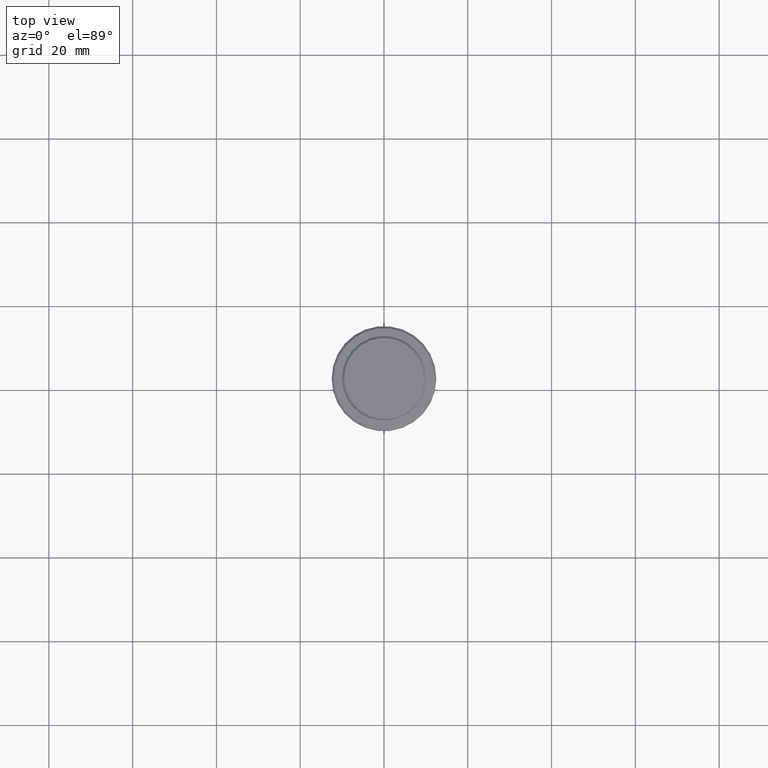
[diagram: clean part render]
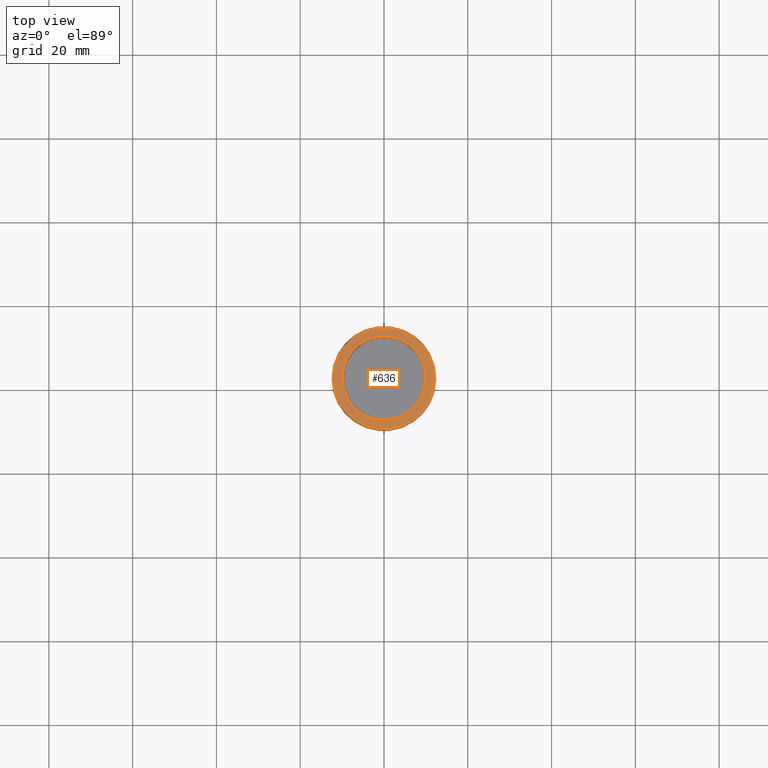
[diagram: same view with one face highlighted and labeled with its STEP entity id]
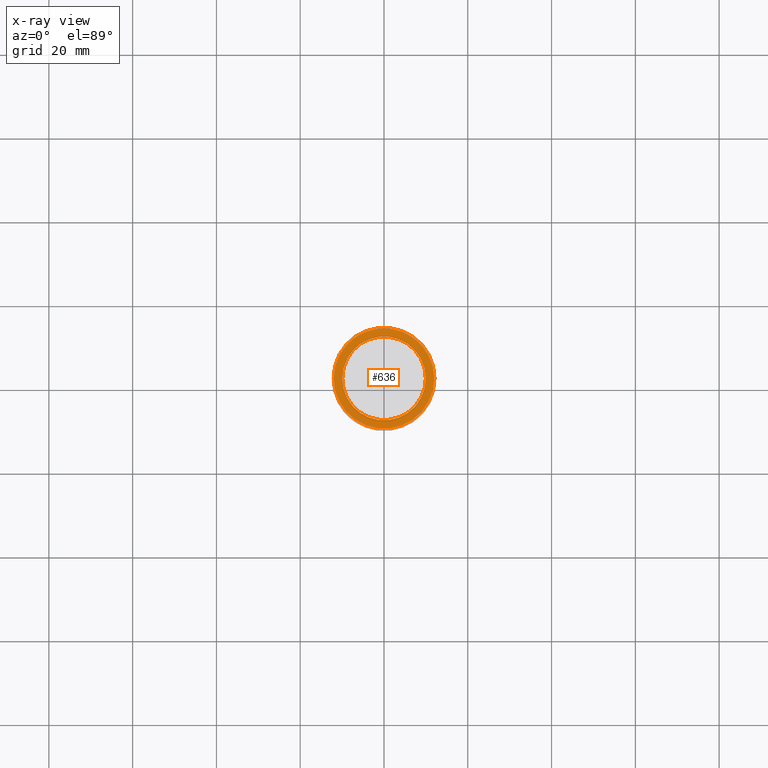
[diagram: x-ray of the same camera — body ghosted, the highlighted face saturated]
A machine part, top view. The second image highlights one B-rep face of the part: STEP entity #636.
The next image is the same camera in x-ray: the body ghosted, the highlighted face saturated — about 0% of this face is hidden behind the body in this view.
In plain terms, the highlighted planar face has unit normal (0, -0, 1).
Its self-contained STEP definition (entity closure, byte-faithful):
#11 = AXIS2_PLACEMENT_3D ( 'NONE', #252, #228, #925 ) ;
#23 = FACE_OUTER_BOUND ( 'NONE', #1009, .T. ) ;
#43 = CIRCLE ( 'NONE', #387, 11.99999999999999645 ) ;
#127 = ORIENTED_EDGE ( 'NONE', *, *, #688, .T. ) ;
#139 = DIRECTION ( 'NONE',  ( 1.000000000000000000, 0.000000000000000000, 0.000000000000000000 ) ) ;
#140 = EDGE_CURVE ( 'NONE', #826, #546, #367, .T. ) ;
#181 = ORIENTED_EDGE ( 'NONE', *, *, #230, .T. ) ;
#183 = CARTESIAN_POINT ( 'NONE',  ( 11.99999999999999645, 1.500192328955507537E-15, -9.000000000000001776 ) ) ;
#185 = EDGE_CURVE ( 'NONE', #663, #1033, #1128, .T. ) ;
#228 = DIRECTION ( 'NONE',  ( 0.000000000000000000, -0.000000000000000000, 1.000000000000000000 ) ) ;
#230 = EDGE_CURVE ( 'NONE', #1033, #663, #43, .T. ) ;
#252 = CARTESIAN_POINT ( 'NONE',  ( 0.000000000000000000, 9.499999999999994671, -9.000000000000001776 ) ) ;
#346 = PLANE ( 'NONE',  #11 ) ;
#353 = CARTESIAN_POINT ( 'NONE',  ( 0.000000000000000000, 0.000000000000000000, -9.000000000000001776 ) ) ;
#360 = CARTESIAN_POINT ( 'NONE',  ( 0.000000000000000000, 0.000000000000000000, -9.000000000000001776 ) ) ;
#367 = CIRCLE ( 'NONE', #931, 9.999999999999994671 ) ;
#385 = CARTESIAN_POINT ( 'NONE',  ( 9.999999999999994671, 0.000000000000000000, -9.000000000000001776 ) ) ;
#387 = AXIS2_PLACEMENT_3D ( 'NONE', #360, #672, #906 ) ;
#423 = CARTESIAN_POINT ( 'NONE',  ( -9.999999999999994671, 1.224646799147352665E-15, -9.000000000000001776 ) ) ;
#424 = CIRCLE ( 'NONE', #929, 9.999999999999994671 ) ;
#442 = DIRECTION ( 'NONE',  ( 1.000000000000000000, 0.000000000000000000, 0.000000000000000000 ) ) ;
#459 = ORIENTED_EDGE ( 'NONE', *, *, #185, .T. ) ;
#486 = EDGE_LOOP ( 'NONE', ( #1392, #127 ) ) ;
#546 = VERTEX_POINT ( 'NONE', #423 ) ;
#636 = ADVANCED_FACE ( 'NONE', ( #23, #1313 ), #346, .T. ) ;
#663 = VERTEX_POINT ( 'NONE', #805 ) ;
#666 = CARTESIAN_POINT ( 'NONE',  ( 0.000000000000000000, 0.000000000000000000, -9.000000000000001776 ) ) ;
#672 = DIRECTION ( 'NONE',  ( -0.000000000000000000, -0.000000000000000000, 1.000000000000000000 ) ) ;
#688 = EDGE_CURVE ( 'NONE', #546, #826, #424, .T. ) ;
#690 = CARTESIAN_POINT ( 'NONE',  ( 0.000000000000000000, 0.000000000000000000, -9.000000000000001776 ) ) ;
#805 = CARTESIAN_POINT ( 'NONE',  ( -11.99999999999999645, 0.000000000000000000, -9.000000000000001776 ) ) ;
#806 = DIRECTION ( 'NONE',  ( 1.000000000000000000, 0.000000000000000000, 0.000000000000000000 ) ) ;
#810 = AXIS2_PLACEMENT_3D ( 'NONE', #353, #817, #806 ) ;
#817 = DIRECTION ( 'NONE',  ( -0.000000000000000000, -0.000000000000000000, 1.000000000000000000 ) ) ;
#826 = VERTEX_POINT ( 'NONE', #385 ) ;
#906 = DIRECTION ( 'NONE',  ( 1.000000000000000000, 0.000000000000000000, 0.000000000000000000 ) ) ;
#925 = DIRECTION ( 'NONE',  ( 1.000000000000000000, 0.000000000000000000, 0.000000000000000000 ) ) ;
#929 = AXIS2_PLACEMENT_3D ( 'NONE', #690, #1133, #139 ) ;
#931 = AXIS2_PLACEMENT_3D ( 'NONE', #666, #1220, #442 ) ;
#1009 = EDGE_LOOP ( 'NONE', ( #459, #181 ) ) ;
#1033 = VERTEX_POINT ( 'NONE', #183 ) ;
#1128 = CIRCLE ( 'NONE', #810, 11.99999999999999645 ) ;
#1133 = DIRECTION ( 'NONE',  ( 0.000000000000000000, 0.000000000000000000, -1.000000000000000000 ) ) ;
#1220 = DIRECTION ( 'NONE',  ( 0.000000000000000000, 0.000000000000000000, -1.000000000000000000 ) ) ;
#1313 = FACE_BOUND ( 'NONE', #486, .T. ) ;
#1392 = ORIENTED_EDGE ( 'NONE', *, *, #140, .T. ) ;